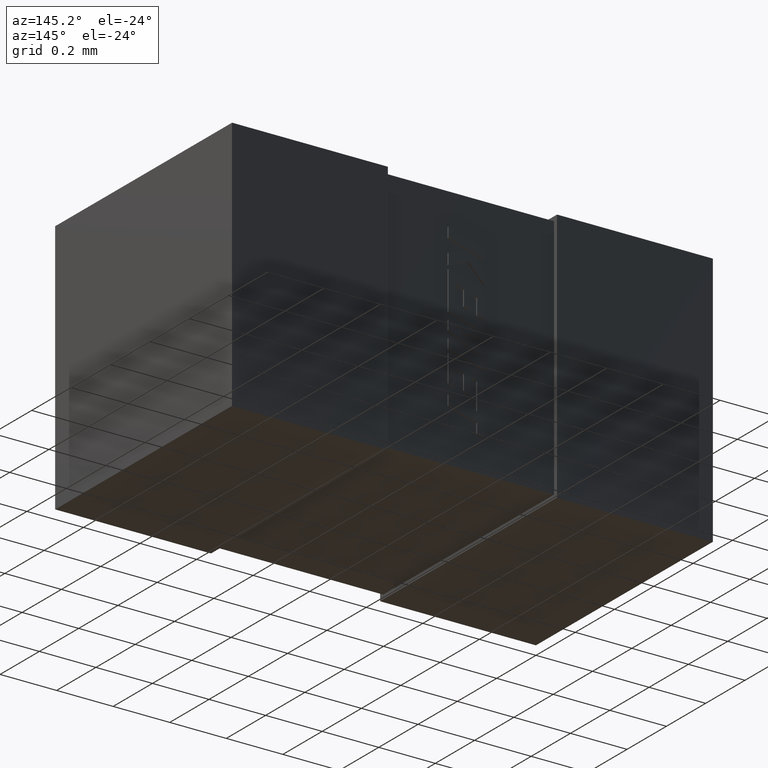
[diagram: clean part render]
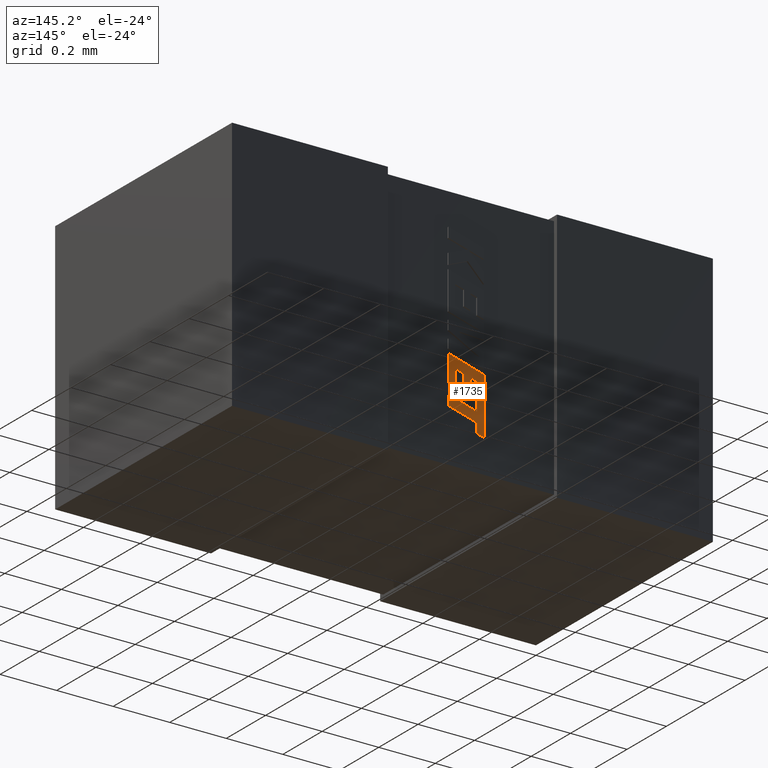
[diagram: same view with one face highlighted and labeled with its STEP entity id]
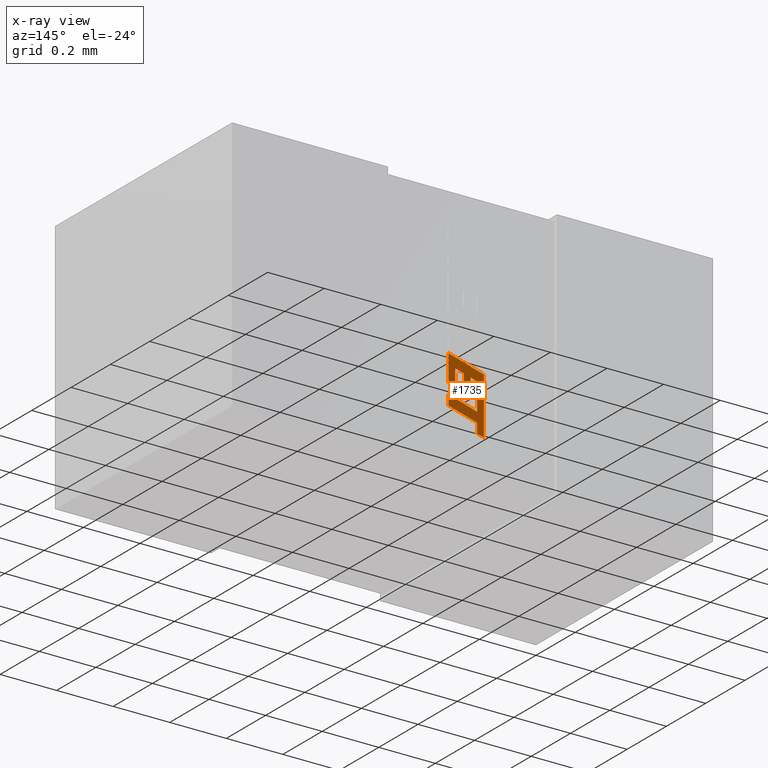
[diagram: x-ray of the same camera — body ghosted, the highlighted face saturated]
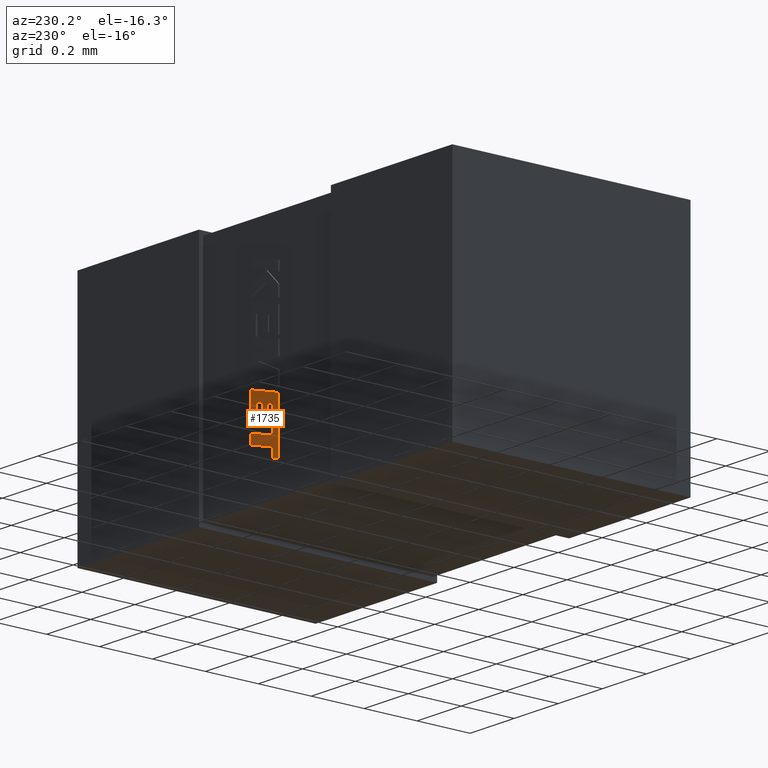
[diagram: same view with one face highlighted and labeled with its STEP entity id]
A machine part, auxiliary view. The second image highlights one B-rep face of the part: STEP entity #1735.
The next image is the same camera in x-ray: the body ghosted, the highlighted face saturated — about 0% of this face is hidden behind the body in this view.
A second angle (auxiliary view) of the same face is appended — the face is thin or edge-on in the first view.
In plain terms, the highlighted planar face has unit normal (-0, 1, 0).
Its self-contained STEP definition (entity closure, byte-faithful):
#14 = ORIENTED_EDGE ( 'NONE', *, *, #746, .T. ) ;
#15 = ORIENTED_EDGE ( 'NONE', *, *, #370, .T. ) ;
#72 = EDGE_CURVE ( 'NONE', #564, #588, #1012, .T. ) ;
#110 = EDGE_CURVE ( 'NONE', #588, #1534, #1103, .T. ) ;
#177 = ORIENTED_EDGE ( 'NONE', *, *, #540, .T. ) ;
#195 = CARTESIAN_POINT ( 'NONE',  ( 0.9035373798501649100, 0.8894830999999999700, -0.5748185062708952600 ) ) ;
#310 = DIRECTION ( 'NONE',  ( -0.9610992334305302800, -1.155703554876929200E-016, -0.2762033010288746400 ) ) ;
#326 = DIRECTION ( 'NONE',  ( 0.9610348236706641700, 1.155626103365309200E-016, 0.2764273280489746300 ) ) ;
#362 = LINE ( 'NONE', #195, #396 ) ;
#365 = ORIENTED_EDGE ( 'NONE', *, *, #2218, .T. ) ;
#370 = EDGE_CURVE ( 'NONE', #2336, #512, #2117, .T. ) ;
#393 = VECTOR ( 'NONE', #2492, 1000.000000000000200 ) ;
#396 = VECTOR ( 'NONE', #1552, 1000.000000000000000 ) ;
#402 = ORIENTED_EDGE ( 'NONE', *, *, #651, .T. ) ;
#403 = CARTESIAN_POINT ( 'NONE',  ( 0.8493096566503880500, 0.8894830999999998600, -0.5902965952175678300 ) ) ;
#407 = ORIENTED_EDGE ( 'NONE', *, *, #72, .T. ) ;
#411 = ORIENTED_EDGE ( 'NONE', *, *, #1792, .T. ) ;
#446 = ORIENTED_EDGE ( 'NONE', *, *, #1599, .T. ) ;
#471 = DIRECTION ( 'NONE',  ( 0.9610664548998353300, 1.155664139316985300E-016, 0.2763173343571893000 ) ) ;
#494 = CARTESIAN_POINT ( 'NONE',  ( 0.8022095100803479100, 0.8894830999999998600, -0.7693063748913687700 ) ) ;
#512 = VERTEX_POINT ( 'NONE', #1116 ) ;
#523 = LINE ( 'NONE', #1129, #893 ) ;
#537 = CARTESIAN_POINT ( 'NONE',  ( 0.9273500000000000100, 0.8894830999999999700, -0.6269686847130812000 ) ) ;
#540 = EDGE_CURVE ( 'NONE', #1646, #2196, #702, .T. ) ;
#548 = VECTOR ( 'NONE', #2237, 1000.000000000000100 ) ;
#559 = AXIS2_PLACEMENT_3D ( 'NONE', #1043, #1421, #648 ) ;
#564 = VERTEX_POINT ( 'NONE', #1500 ) ;
#570 = EDGE_CURVE ( 'NONE', #1377, #1498, #821, .T. ) ;
#588 = VERTEX_POINT ( 'NONE', #1507 ) ;
#611 = VECTOR ( 'NONE', #2171, 1000.000000000000000 ) ;
#635 = VECTOR ( 'NONE', #310, 1000.000000000000100 ) ;
#637 = CARTESIAN_POINT ( 'NONE',  ( 0.8493096566503880500, 0.8894830999999998600, -0.5902965952175678300 ) ) ;
#646 = CARTESIAN_POINT ( 'NONE',  ( 0.8261948784575442500, 0.8894830999999998600, -0.6544158666807475800 ) ) ;
#647 = EDGE_CURVE ( 'NONE', #2196, #564, #1304, .T. ) ;
#648 = DIRECTION ( 'NONE',  ( 0.0000000000000000000, 0.0000000000000000000, 1.000000000000000000 ) ) ;
#651 = EDGE_CURVE ( 'NONE', #1474, #2493, #1333, .T. ) ;
#691 = ORIENTED_EDGE ( 'NONE', *, *, #110, .T. ) ;
#695 = LINE ( 'NONE', #2439, #635 ) ;
#702 = LINE ( 'NONE', #1301, #2177 ) ;
#746 = EDGE_CURVE ( 'NONE', #512, #1377, #1130, .T. ) ;
#757 = VECTOR ( 'NONE', #1569, 1000.000000000000000 ) ;
#767 = ORIENTED_EDGE ( 'NONE', *, *, #1127, .T. ) ;
#782 = VECTOR ( 'NONE', #1476, 1000.000000000000100 ) ;
#821 = LINE ( 'NONE', #2482, #1187 ) ;
#893 = VECTOR ( 'NONE', #1687, 999.9999999999998900 ) ;
#910 = VECTOR ( 'NONE', #2322, 1000.000000000000000 ) ;
#934 = ORIENTED_EDGE ( 'NONE', *, *, #570, .T. ) ;
#935 = CARTESIAN_POINT ( 'NONE',  ( 0.9035373798501649100, 0.8894830999999999700, -0.6337256517103330200 ) ) ;
#954 = ORIENTED_EDGE ( 'NONE', *, *, #647, .T. ) ;
#969 = DIRECTION ( 'NONE',  ( -0.9615323037683726200, -1.156224313724243600E-016, -0.2746918797669236100 ) ) ;
#978 = CARTESIAN_POINT ( 'NONE',  ( 0.8493096566503880500, 0.8894830999999998600, -0.6439999856928131400 ) ) ;
#1001 = LINE ( 'NONE', #978, #1772 ) ;
#1012 = LINE ( 'NONE', #537, #2297 ) ;
#1028 = CARTESIAN_POINT ( 'NONE',  ( 0.9035373798501649100, 0.8894830999999999700, -0.5748185062708952600 ) ) ;
#1043 = CARTESIAN_POINT ( 'NONE',  ( 0.2017464443607649100, 0.8894830999999998600, -0.01832847911171577400 ) ) ;
#1084 = VERTEX_POINT ( 'NONE', #646 ) ;
#1103 = LINE ( 'NONE', #935, #1785 ) ;
#1116 = CARTESIAN_POINT ( 'NONE',  ( 0.9273499999999997900, 0.8894830999999999700, -0.6634276926950346500 ) ) ;
#1122 = LINE ( 'NONE', #1266, #782 ) ;
#1127 = EDGE_CURVE ( 'NONE', #1760, #1646, #2357, .T. ) ;
#1129 = CARTESIAN_POINT ( 'NONE',  ( 0.8260335453114811000, 0.8894830999999998600, -0.5970695433283581500 ) ) ;
#1130 = LINE ( 'NONE', #1953, #611 ) ;
#1132 = DIRECTION ( 'NONE',  ( 0.0000000000000000000, 0.0000000000000000000, 1.000000000000000000 ) ) ;
#1151 = LINE ( 'NONE', #1280, #548 ) ;
#1187 = VECTOR ( 'NONE', #1877, 1000.000000000000100 ) ;
#1199 = EDGE_CURVE ( 'NONE', #1565, #1760, #695, .T. ) ;
#1217 = ORIENTED_EDGE ( 'NONE', *, *, #1199, .T. ) ;
#1219 = CARTESIAN_POINT ( 'NONE',  ( 0.8022095100803479100, 0.8894830999999998600, -0.7693063748913687700 ) ) ;
#1232 = FACE_OUTER_BOUND ( 'NONE', #1890, .T. ) ;
#1258 = VERTEX_POINT ( 'NONE', #1831 ) ;
#1266 = CARTESIAN_POINT ( 'NONE',  ( 0.8263718122146795900, 0.8894830999999998600, -0.7280994540826535300 ) ) ;
#1280 = CARTESIAN_POINT ( 'NONE',  ( 0.8261948784575442500, 0.8894830999999998600, -0.6544158666807475800 ) ) ;
#1281 = EDGE_CURVE ( 'NONE', #1084, #2336, #1151, .T. ) ;
#1301 = CARTESIAN_POINT ( 'NONE',  ( 0.8022095100803479100, 0.8894830999999998600, -0.5684161678931739500 ) ) ;
#1304 = LINE ( 'NONE', #1915, #757 ) ;
#1329 = LINE ( 'NONE', #1564, #910 ) ;
#1330 = CARTESIAN_POINT ( 'NONE',  ( 0.8263745322471969200, 0.8894830999999998600, -0.7623617653653618200 ) ) ;
#1333 = LINE ( 'NONE', #403, #393 ) ;
#1357 = DIRECTION ( 'NONE',  ( 0.0000000000000000000, 0.0000000000000000000, 1.000000000000000000 ) ) ;
#1377 = VERTEX_POINT ( 'NONE', #2131 ) ;
#1413 = EDGE_CURVE ( 'NONE', #1977, #2105, #1329, .T. ) ;
#1415 = CARTESIAN_POINT ( 'NONE',  ( 0.8260335453114811000, 0.8894830999999998600, -0.5970695433283581500 ) ) ;
#1421 = DIRECTION ( 'NONE',  ( -1.202480987058726000E-016, 1.000000000000000000, 0.0000000000000000000 ) ) ;
#1474 = VERTEX_POINT ( 'NONE', #637 ) ;
#1476 = DIRECTION ( 'NONE',  ( 7.938847109027596600E-005, 9.546312707771820300E-021, -0.9999999968487352000 ) ) ;
#1498 = VERTEX_POINT ( 'NONE', #1543 ) ;
#1500 = CARTESIAN_POINT ( 'NONE',  ( 0.9273500000000000100, 0.8894830999999999700, -0.6269686847130812000 ) ) ;
#1507 = CARTESIAN_POINT ( 'NONE',  ( 0.9035373798501649100, 0.8894830999999999700, -0.6337256517103330200 ) ) ;
#1518 = VECTOR ( 'NONE', #471, 1000.000000000000000 ) ;
#1520 = VECTOR ( 'NONE', #969, 1000.000000000000000 ) ;
#1534 = VERTEX_POINT ( 'NONE', #1028 ) ;
#1543 = CARTESIAN_POINT ( 'NONE',  ( 0.8263718122146795900, 0.8894830999999998600, -0.7280994540826535300 ) ) ;
#1552 = DIRECTION ( 'NONE',  ( -0.9615825319868576100, -1.156284712201985600E-016, -0.2745159998574655000 ) ) ;
#1564 = CARTESIAN_POINT ( 'NONE',  ( 0.8724396549514063000, 0.8894830999999999700, -0.5836963953338716300 ) ) ;
#1565 = VERTEX_POINT ( 'NONE', #1330 ) ;
#1569 = DIRECTION ( 'NONE',  ( 0.0000000000000000000, 0.0000000000000000000, -1.000000000000000000 ) ) ;
#1598 = VECTOR ( 'NONE', #1611, 1000.000000000000000 ) ;
#1599 = EDGE_CURVE ( 'NONE', #1258, #1474, #1001, .T. ) ;
#1601 = PLANE ( 'NONE',  #559 ) ;
#1611 = DIRECTION ( 'NONE',  ( 0.0000000000000000000, 0.0000000000000000000, 1.000000000000000000 ) ) ;
#1612 = ORIENTED_EDGE ( 'NONE', *, *, #1413, .T. ) ;
#1646 = VERTEX_POINT ( 'NONE', #1921 ) ;
#1667 = ORIENTED_EDGE ( 'NONE', *, *, #2118, .T. ) ;
#1687 = DIRECTION ( 'NONE',  ( 0.002813301676229718700, 3.382941776526682500E-019, -0.9999960426590091000 ) ) ;
#1719 = LINE ( 'NONE', #2304, #1520 ) ;
#1735 = ADVANCED_FACE ( 'NONE', ( #1232 ), #1601, .T. ) ;
#1760 = VERTEX_POINT ( 'NONE', #494 ) ;
#1772 = VECTOR ( 'NONE', #1357, 1000.000000000000000 ) ;
#1783 = CARTESIAN_POINT ( 'NONE',  ( 0.8263718122143868200, 0.8894830999999998600, -0.6924600489227298300 ) ) ;
#1785 = VECTOR ( 'NONE', #1132, 1000.000000000000000 ) ;
#1792 = EDGE_CURVE ( 'NONE', #1498, #1565, #1122, .T. ) ;
#1831 = CARTESIAN_POINT ( 'NONE',  ( 0.8493096566503880500, 0.8894830999999998600, -0.6439999856928131400 ) ) ;
#1877 = DIRECTION ( 'NONE',  ( -0.9610876102172915000, -1.155689578184001300E-016, -0.2762437428916998400 ) ) ;
#1890 = EDGE_LOOP ( 'NONE', ( #1667, #2130, #15, #14, #934, #411, #1217, #767, #177, #954, #407, #691, #365, #1612, #2248, #446, #402 ) ) ;
#1915 = CARTESIAN_POINT ( 'NONE',  ( 0.9273500000000000100, 0.8894830999999999700, -0.5324213731082104700 ) ) ;
#1921 = CARTESIAN_POINT ( 'NONE',  ( 0.8022095100803479100, 0.8894830999999998600, -0.5684161678931739500 ) ) ;
#1930 = CARTESIAN_POINT ( 'NONE',  ( 0.8263718122143868200, 0.8894830999999998600, -0.6924600489227298300 ) ) ;
#1953 = CARTESIAN_POINT ( 'NONE',  ( 0.9273499999999997900, 0.8894830999999999700, -0.6634276926950346500 ) ) ;
#1977 = VERTEX_POINT ( 'NONE', #2434 ) ;
#2094 = CARTESIAN_POINT ( 'NONE',  ( 0.9273500000000000100, 0.8894830999999999700, -0.5324213731082104700 ) ) ;
#2105 = VERTEX_POINT ( 'NONE', #2488 ) ;
#2117 = LINE ( 'NONE', #1783, #1518 ) ;
#2118 = EDGE_CURVE ( 'NONE', #2493, #1084, #523, .T. ) ;
#2130 = ORIENTED_EDGE ( 'NONE', *, *, #1281, .T. ) ;
#2131 = CARTESIAN_POINT ( 'NONE',  ( 0.9273499999999997900, 0.8894830999999999700, -0.6990754689145052300 ) ) ;
#2171 = DIRECTION ( 'NONE',  ( 0.0000000000000000000, 0.0000000000000000000, -1.000000000000000000 ) ) ;
#2177 = VECTOR ( 'NONE', #326, 1000.000000000000100 ) ;
#2196 = VERTEX_POINT ( 'NONE', #2094 ) ;
#2218 = EDGE_CURVE ( 'NONE', #1534, #1977, #362, .T. ) ;
#2237 = DIRECTION ( 'NONE',  ( 0.004650693823851306600, 5.592370899812642300E-019, -0.9999891854650012600 ) ) ;
#2248 = ORIENTED_EDGE ( 'NONE', *, *, #2328, .T. ) ;
#2297 = VECTOR ( 'NONE', #2454, 1000.000000000000100 ) ;
#2304 = CARTESIAN_POINT ( 'NONE',  ( 0.8724396549514064100, 0.8894830999999999700, -0.6373921757550588000 ) ) ;
#2322 = DIRECTION ( 'NONE',  ( 0.0000000000000000000, 0.0000000000000000000, -1.000000000000000000 ) ) ;
#2328 = EDGE_CURVE ( 'NONE', #2105, #1258, #1719, .T. ) ;
#2336 = VERTEX_POINT ( 'NONE', #1930 ) ;
#2357 = LINE ( 'NONE', #1219, #1598 ) ;
#2434 = CARTESIAN_POINT ( 'NONE',  ( 0.8724396549514063000, 0.8894830999999999700, -0.5836963953338716300 ) ) ;
#2439 = CARTESIAN_POINT ( 'NONE',  ( 0.8263745322471969200, 0.8894830999999998600, -0.7623617653653618200 ) ) ;
#2454 = DIRECTION ( 'NONE',  ( -0.9620200793798677800, -1.156810854623017700E-016, -0.2729786930695376500 ) ) ;
#2482 = CARTESIAN_POINT ( 'NONE',  ( 0.9273499999999997900, 0.8894830999999999700, -0.6990754689145052300 ) ) ;
#2488 = CARTESIAN_POINT ( 'NONE',  ( 0.8724396549514064100, 0.8894830999999999700, -0.6373921757550588000 ) ) ;
#2492 = DIRECTION ( 'NONE',  ( -0.9601763114345461800, -1.154593758724220000E-016, -0.2793947940816889400 ) ) ;
#2493 = VERTEX_POINT ( 'NONE', #1415 ) ;